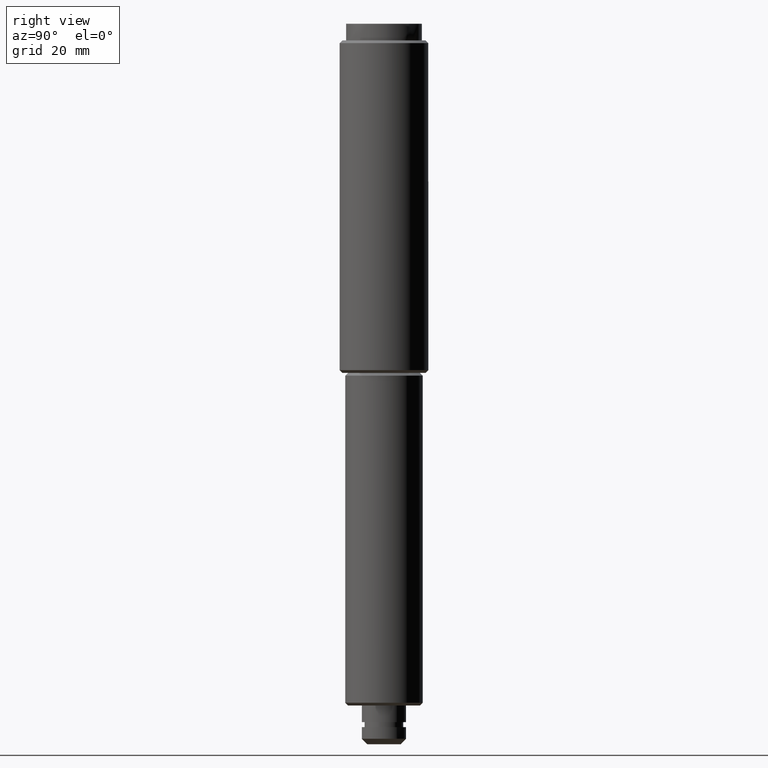
[diagram: clean part render]
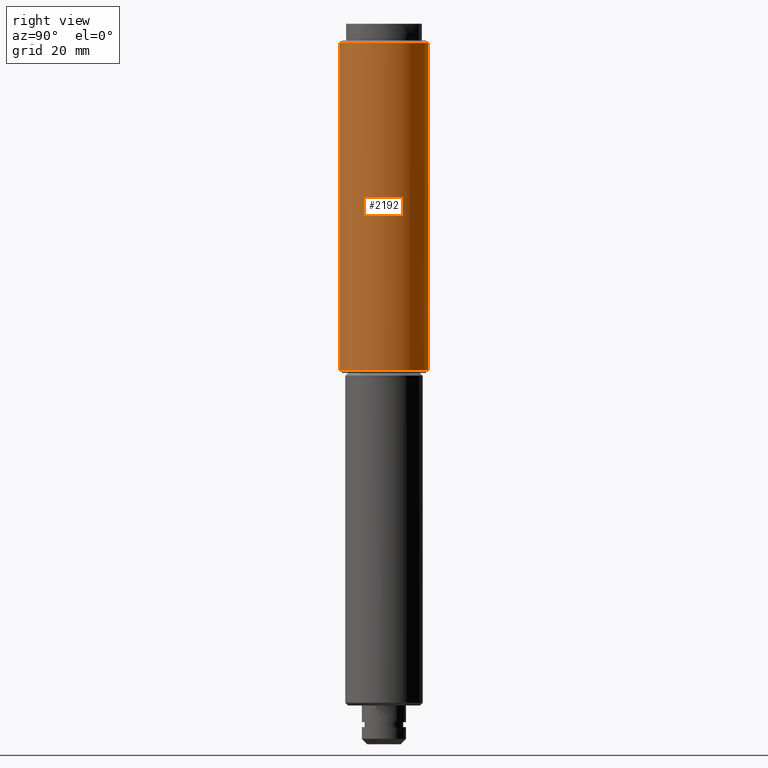
[diagram: same view with one face highlighted and labeled with its STEP entity id]
A machine part, right view. The second image highlights one B-rep face of the part: STEP entity #2192.
In plain terms, the highlighted face is a freeform B-spline surface patch.
Its self-contained STEP definition (entity closure, byte-faithful):
#1765=CARTESIAN_POINT('',(0.993024016799799,7.938129710584148,126.500000000000000));
#1766=VERTEX_POINT('',#1765);
#1823=CARTESIAN_POINT('',(-0.069812284123139,-7.999695384512066,126.500000000000100));
#1824=VERTEX_POINT('',#1823);
#1830=CARTESIAN_POINT('',(8.0,0.0,126.500000000000000));
#1831=VERTEX_POINT('',#1830);
#1832=CARTESIAN_POINT('',(8.0,0.0,126.500000000000000));
#1833=CARTESIAN_POINT('',(8.0,-8.0,126.500000000000010));
#1834=CARTESIAN_POINT('',(0.0,-8.0,126.500000000000000));
#1835=CARTESIAN_POINT('',(-0.034906806837947,-8.0,126.500000000000030));
#1836=CARTESIAN_POINT('',(-0.069812284123139,-7.999695384512066,126.500000000000160));
#1844=(BOUNDED_CURVE()B_SPLINE_CURVE(2,(#1832,#1833,#1834,#1835,#1836),.UNSPECIFIED.,.F.,.U.)B_SPLINE_CURVE_WITH_KNOTS((3,2,3),(0.500000000000000,0.750000000000000,0.751539894346979),.UNSPECIFIED.)CURVE()GEOMETRIC_REPRESENTATION_ITEM()RATIONAL_B_SPLINE_CURVE((1.0,0.707106781186548,1.0,0.998195901552322,0.996414028072652))REPRESENTATION_ITEM(''));
#1845=EDGE_CURVE('',#1831,#1824,#1844,.T.);
#1847=CARTESIAN_POINT('',(0.993024016799799,7.938129710584148,126.500000000000060));
#1848=CARTESIAN_POINT('',(8.0,7.061588800912860,126.499999999999990));
#1849=CARTESIAN_POINT('',(8.0,0.0,126.500000000000000));
#1857=(BOUNDED_CURVE()B_SPLINE_CURVE(2,(#1847,#1848,#1849),.UNSPECIFIED.,.F.,.U.)B_SPLINE_CURVE_WITH_KNOTS((3,3),(0.271473928977549,0.500000000000000),.UNSPECIFIED.)CURVE()GEOMETRIC_REPRESENTATION_ITEM()RATIONAL_B_SPLINE_CURVE((0.954005430261430,0.732265053901771,1.0))REPRESENTATION_ITEM(''));
#1858=EDGE_CURVE('',#1766,#1831,#1857,.T.);
#2048=CARTESIAN_POINT('',(0.993024016826374,7.938129710580823,67.500000000000000));
#2049=VERTEX_POINT('',#2048);
#2065=CARTESIAN_POINT('',(8.0,0.0,67.500000000000000));
#2066=VERTEX_POINT('',#2065);
#2067=CARTESIAN_POINT('',(8.0,0.0,67.500000000000000));
#2068=CARTESIAN_POINT('',(8.0,7.061588800865227,67.499999999999986));
#2069=CARTESIAN_POINT('',(0.993024016826374,7.938129710580823,67.500000000000000));
#2077=(BOUNDED_CURVE()B_SPLINE_CURVE(2,(#2067,#2068,#2069),.UNSPECIFIED.,.F.,.U.)B_SPLINE_CURVE_WITH_KNOTS((3,3),(0.500000000000000,0.728526071021322),.UNSPECIFIED.)CURVE()GEOMETRIC_REPRESENTATION_ITEM()RATIONAL_B_SPLINE_CURVE((1.0,0.732265053903093,0.954005430259239))REPRESENTATION_ITEM(''));
#2078=EDGE_CURVE('',#2066,#2049,#2077,.T.);
#2080=CARTESIAN_POINT('',(-0.069812284231278,-7.999695384511238,67.500000000000000));
#2081=VERTEX_POINT('',#2080);
#2082=CARTESIAN_POINT('',(-0.069812284231278,-7.999695384511238,67.500000000000000));
#2083=CARTESIAN_POINT('',(-0.034906806809913,-8.0,67.500000000000000));
#2084=CARTESIAN_POINT('',(0.0,-8.0,67.500000000000000));
#2085=CARTESIAN_POINT('',(8.0,-8.0,67.500000000000000));
#2086=CARTESIAN_POINT('',(8.0,0.0,67.500000000000000));
#2094=(BOUNDED_CURVE()B_SPLINE_CURVE(2,(#2082,#2083,#2084,#2085,#2086),.UNSPECIFIED.,.F.,.U.)B_SPLINE_CURVE_WITH_KNOTS((3,2,3),(0.248460105654255,0.250000000000000,0.500000000000000),.UNSPECIFIED.)CURVE()GEOMETRIC_REPRESENTATION_ITEM()RATIONAL_B_SPLINE_CURVE((0.996414028075509,0.998195901553769,1.0,0.707106781186548,1.0))REPRESENTATION_ITEM(''));
#2095=EDGE_CURVE('',#2081,#2066,#2094,.T.);
#2158=CARTESIAN_POINT('',(0.993024016638634,7.938129710604309,127.975000000000010));
#2159=CARTESIAN_POINT('',(8.061862644019557,7.053850065065769,127.975000000000020));
#2160=CARTESIAN_POINT('',(7.999695384513368,-0.069812283986991,127.974999999999990));
#2161=CARTESIAN_POINT('',(7.929883100526377,-8.069507668500359,127.975000000000020));
#2162=CARTESIAN_POINT('',(-0.069812283986991,-7.999695384513368,127.974999999999990));
#2163=CARTESIAN_POINT('',(0.993024016638634,7.938129710604309,65.988124999999997));
#2164=CARTESIAN_POINT('',(8.061862644019557,7.053850065065769,65.988124999999982));
#2165=CARTESIAN_POINT('',(7.999695384513368,-0.069812283986991,65.988124999999997));
#2166=CARTESIAN_POINT('',(7.929883100526377,-8.069507668500359,65.988124999999982));
#2167=CARTESIAN_POINT('',(-0.069812283986991,-7.999695384513368,65.988124999999997));
#2175=(BOUNDED_SURFACE()B_SPLINE_SURFACE(2,1,((#2158,#2163),(#2159,#2164),(#2160,#2165),(#2161,#2166),(#2162,#2167)),.UNSPECIFIED.,.F.,.F.,.U.)B_SPLINE_SURFACE_WITH_KNOTS((3,2,3),(2,2),(0.0,12.194447276263910,25.449281272202949),(0.0,61.986875000000033),.UNSPECIFIED.)GEOMETRIC_REPRESENTATION_ITEM()RATIONAL_B_SPLINE_SURFACE(((0.956886118190660,0.956886118190660),(0.730538238691624,0.730538238691624),(1.0,1.0),(0.707106781186548,0.707106781186548),(1.0,1.0)))REPRESENTATION_ITEM('')SURFACE());
#2176=ORIENTED_EDGE('',*,*,#1858,.T.);
#2177=ORIENTED_EDGE('',*,*,#1845,.T.);
#2178=CARTESIAN_POINT('',(-0.069812284123139,-7.999695384512066,126.500000000000100));
#2179=CARTESIAN_POINT('',(-0.069812284231278,-7.999695384511238,67.500000000000000));
#2180=QUASI_UNIFORM_CURVE('',1,(#2178,#2179),.UNSPECIFIED.,.F.,.U.);
#2181=EDGE_CURVE('',#1824,#2081,#2180,.T.);
#2182=ORIENTED_EDGE('',*,*,#2181,.T.);
#2183=ORIENTED_EDGE('',*,*,#2095,.T.);
#2184=ORIENTED_EDGE('',*,*,#2078,.T.);
#2185=CARTESIAN_POINT('',(0.993024016799799,7.938129710584148,126.500000000000000));
#2186=CARTESIAN_POINT('',(0.993024016826374,7.938129710580823,67.500000000000000));
#2187=QUASI_UNIFORM_CURVE('',1,(#2185,#2186),.UNSPECIFIED.,.F.,.U.);
#2188=EDGE_CURVE('',#1766,#2049,#2187,.T.);
#2189=ORIENTED_EDGE('',*,*,#2188,.F.);
#2190=EDGE_LOOP('',(#2176,#2177,#2182,#2183,#2184,#2189));
#2191=FACE_OUTER_BOUND('',#2190,.T.);
#2192=ADVANCED_FACE('',(#2191),#2175,.T.);